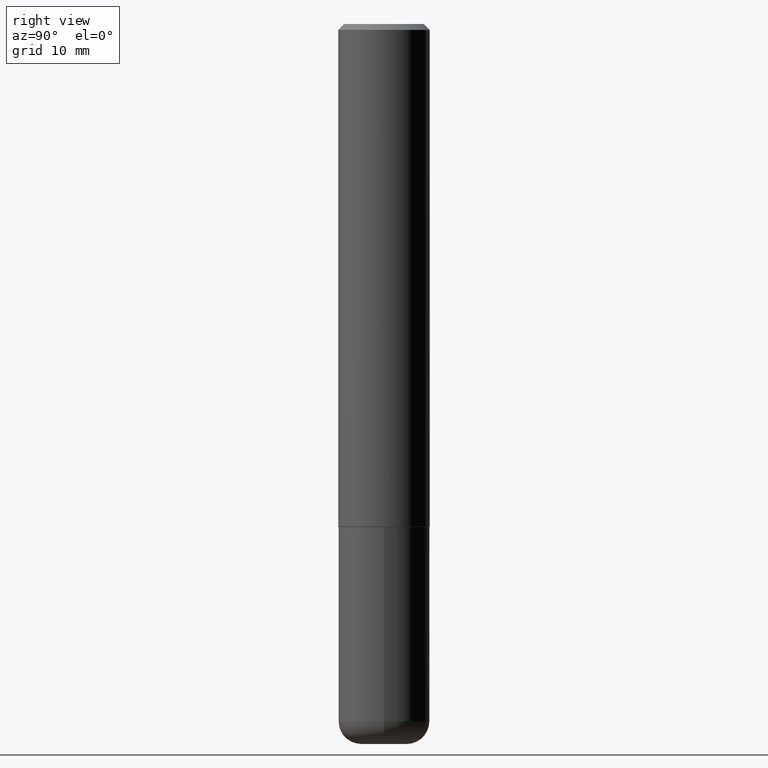
[diagram: clean part render]
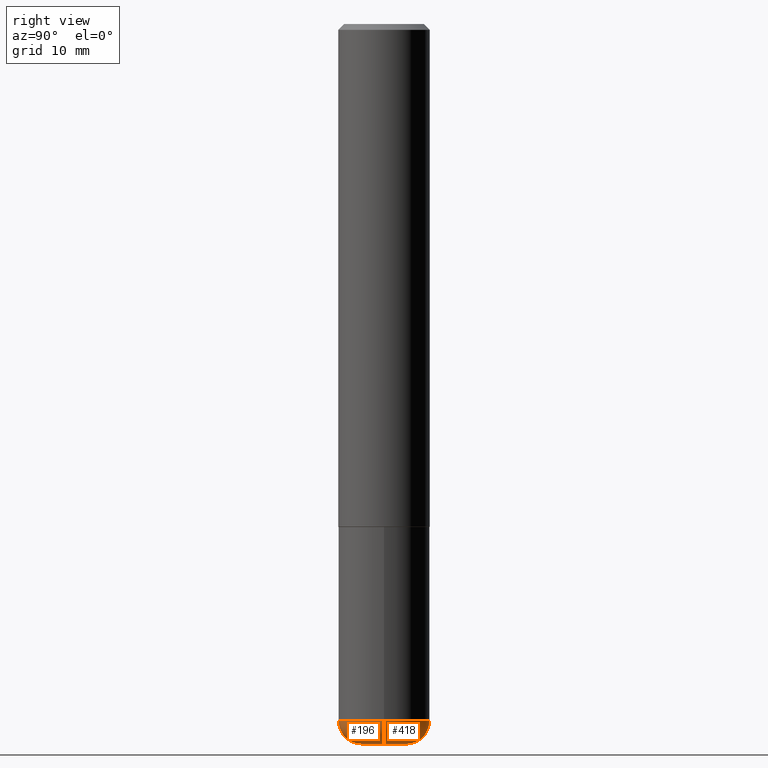
[diagram: same view with one multi-face feature highlighted, each face labeled with its STEP entity id]
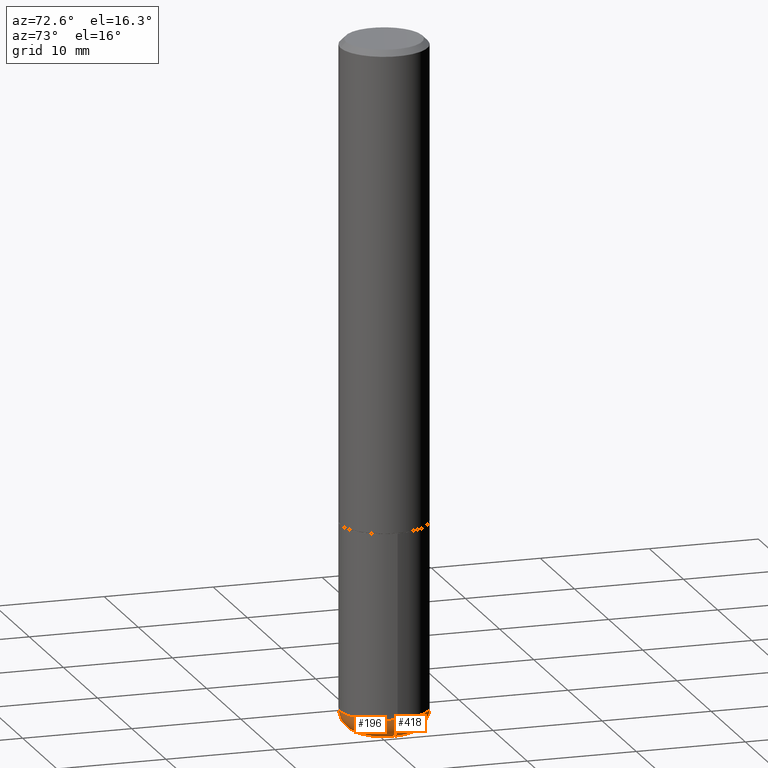
[diagram: same view with one multi-face feature highlighted, each face labeled with its STEP entity id]
A machine part, right view. The highlighted faces form ONE feature: a constant-radius fillet chain: 2 tangent blend faces with common blend radius 1.999 mm. The faces share edges in the B-rep.
A second angle (auxiliary view) of the same feature is appended — it is thin or edge-on in the first view.
Their STEP definitions:
[1] entity #418 (Torus):
#4 = DIRECTION ( 'NONE',  ( 1.000000000000000000, -6.982962677686261977E-15, 0.000000000000000000 ) ) ;
#6 = EDGE_LOOP ( 'NONE', ( #38, #191, #130, #256 ) ) ;
#14 = DIRECTION ( 'NONE',  ( 1.000000000000000000, -6.982962677686263555E-15, 4.883557194083111780E-29 ) ) ;
#19 = CARTESIAN_POINT ( 'NONE',  ( -0.07879999999999999505, -7.825233907586740028E-15, -2.401600000000000623 ) ) ;
#30 = AXIS2_PLACEMENT_3D ( 'NONE', #399, #209, #14 ) ;
#38 = ORIENTED_EDGE ( 'NONE', *, *, #213, .T. ) ;
#49 = DIRECTION ( 'NONE',  ( 1.000000000000000000, -6.982962677686277755E-15, 0.000000000000000000 ) ) ;
#74 = EDGE_CURVE ( 'NONE', #317, #355, #304, .T. ) ;
#81 = DIRECTION ( 'NONE',  ( -2.445468806185136597E-29, 3.491481338843145583E-15, 1.000000000000000000 ) ) ;
#93 = DIRECTION ( 'NONE',  ( -1.000000000000000000, 7.105427357600995548E-15, 0.000000000000000000 ) ) ;
#102 = CARTESIAN_POINT ( 'NONE',  ( 0.1574999999999999456, -9.484958205101285532E-15, -2.401600000000000623 ) ) ;
#104 = AXIS2_PLACEMENT_3D ( 'NONE', #181, #81, #49 ) ;
#130 = ORIENTED_EDGE ( 'NONE', *, *, #346, .F. ) ;
#132 = AXIS2_PLACEMENT_3D ( 'NONE', #167, #384, #4 ) ;
#138 = AXIS2_PLACEMENT_3D ( 'NONE', #19, #145, #93 ) ;
#145 = DIRECTION ( 'NONE',  ( 7.105427357601001859E-15, 1.000000000000000000, -3.491481338843145583E-15 ) ) ;
#149 = EDGE_CURVE ( 'NONE', #228, #379, #314, .T. ) ;
#167 = CARTESIAN_POINT ( 'NONE',  ( 5.873037884934225470E-29, -8.385141583365698841E-15, -2.401600000000000623 ) ) ;
#168 = TOROIDAL_SURFACE ( 'NONE', #30, 0.07879999999999999505, 0.07869999999999995055 ) ;
#181 = CARTESIAN_POINT ( 'NONE',  ( 6.065496279980994755E-29, -8.659921164732655335E-15, -2.480300000000000171 ) ) ;
#185 = CARTESIAN_POINT ( 'NONE',  ( 0.07879999999999999505, -8.935399042367378854E-15, -2.401600000000000623 ) ) ;
#191 = ORIENTED_EDGE ( 'NONE', *, *, #149, .T. ) ;
#208 = CIRCLE ( 'NONE', #132, 0.1575000000000000011 ) ;
#209 = DIRECTION ( 'NONE',  ( -2.445468806185136597E-29, 3.491481338843145583E-15, 1.000000000000000000 ) ) ;
#213 = EDGE_CURVE ( 'NONE', #317, #228, #279, .T. ) ;
#228 = VERTEX_POINT ( 'NONE', #303 ) ;
#256 = ORIENTED_EDGE ( 'NONE', *, *, #74, .F. ) ;
#279 = CIRCLE ( 'NONE', #104, 0.07880000000000000893 ) ;
#303 = CARTESIAN_POINT ( 'NONE',  ( -0.07880000000000000893, -7.683025131748618880E-15, -2.480300000000000171 ) ) ;
#304 = CIRCLE ( 'NONE', #361, 0.07869999999999996443 ) ;
#306 = DIRECTION ( 'NONE',  ( 1.000000000000000000, -6.982962677686273021E-15, 0.000000000000000000 ) ) ;
#314 = CIRCLE ( 'NONE', #138, 0.07869999999999996443 ) ;
#315 = CARTESIAN_POINT ( 'NONE',  ( -0.1574999999999999456, -7.266036774543542815E-15, -2.401600000000000623 ) ) ;
#317 = VERTEX_POINT ( 'NONE', #377 ) ;
#346 = EDGE_CURVE ( 'NONE', #355, #379, #208, .T. ) ;
#355 = VERTEX_POINT ( 'NONE', #102 ) ;
#361 = AXIS2_PLACEMENT_3D ( 'NONE', #185, #408, #306 ) ;
#377 = CARTESIAN_POINT ( 'NONE',  ( 0.07880000000000000893, -9.210178623734333771E-15, -2.480300000000000171 ) ) ;
#379 = VERTEX_POINT ( 'NONE', #315 ) ;
#384 = DIRECTION ( 'NONE',  ( -2.445468806185136597E-29, 3.491481338843145583E-15, 1.000000000000000000 ) ) ;
#399 = CARTESIAN_POINT ( 'NONE',  ( 5.873037884934225470E-29, -8.385141583365698841E-15, -2.401600000000000623 ) ) ;
#403 = FACE_OUTER_BOUND ( 'NONE', #6, .T. ) ;
#408 = DIRECTION ( 'NONE',  ( -6.982962677686266711E-15, -1.000000000000000000, 3.491481338843145583E-15 ) ) ;
#418 = ADVANCED_FACE ( 'NONE', ( #403 ), #168, .T. ) ;
[2] entity #196 (Torus):
#19 = CARTESIAN_POINT ( 'NONE',  ( -0.07879999999999999505, -7.825233907586740028E-15, -2.401600000000000623 ) ) ;
#20 = CIRCLE ( 'NONE', #194, 0.1575000000000000011 ) ;
#45 = AXIS2_PLACEMENT_3D ( 'NONE', #242, #232, #333 ) ;
#51 = DIRECTION ( 'NONE',  ( 1.000000000000000000, -6.982962677686261977E-15, 0.000000000000000000 ) ) ;
#65 = EDGE_CURVE ( 'NONE', #228, #317, #321, .T. ) ;
#74 = EDGE_CURVE ( 'NONE', #317, #355, #304, .T. ) ;
#75 = EDGE_LOOP ( 'NONE', ( #319, #220, #323, #414 ) ) ;
#93 = DIRECTION ( 'NONE',  ( -1.000000000000000000, 7.105427357600995548E-15, 0.000000000000000000 ) ) ;
#102 = CARTESIAN_POINT ( 'NONE',  ( 0.1574999999999999456, -9.484958205101285532E-15, -2.401600000000000623 ) ) ;
#118 = CARTESIAN_POINT ( 'NONE',  ( 5.873037884934225470E-29, -8.385141583365698841E-15, -2.401600000000000623 ) ) ;
#138 = AXIS2_PLACEMENT_3D ( 'NONE', #19, #145, #93 ) ;
#145 = DIRECTION ( 'NONE',  ( 7.105427357601001859E-15, 1.000000000000000000, -3.491481338843145583E-15 ) ) ;
#149 = EDGE_CURVE ( 'NONE', #228, #379, #314, .T. ) ;
#155 = DIRECTION ( 'NONE',  ( 1.000000000000000000, -6.982962677686277755E-15, 0.000000000000000000 ) ) ;
#185 = CARTESIAN_POINT ( 'NONE',  ( 0.07879999999999999505, -8.935399042367378854E-15, -2.401600000000000623 ) ) ;
#194 = AXIS2_PLACEMENT_3D ( 'NONE', #118, #417, #51 ) ;
#196 = ADVANCED_FACE ( 'NONE', ( #212 ), #352, .T. ) ;
#199 = AXIS2_PLACEMENT_3D ( 'NONE', #406, #211, #155 ) ;
#211 = DIRECTION ( 'NONE',  ( -2.445468806185136597E-29, 3.491481338843145583E-15, 1.000000000000000000 ) ) ;
#212 = FACE_OUTER_BOUND ( 'NONE', #75, .T. ) ;
#220 = ORIENTED_EDGE ( 'NONE', *, *, #65, .T. ) ;
#228 = VERTEX_POINT ( 'NONE', #303 ) ;
#232 = DIRECTION ( 'NONE',  ( -2.445468806185136597E-29, 3.491481338843145583E-15, 1.000000000000000000 ) ) ;
#242 = CARTESIAN_POINT ( 'NONE',  ( 5.873037884934225470E-29, -8.385141583365698841E-15, -2.401600000000000623 ) ) ;
#303 = CARTESIAN_POINT ( 'NONE',  ( -0.07880000000000000893, -7.683025131748618880E-15, -2.480300000000000171 ) ) ;
#304 = CIRCLE ( 'NONE', #361, 0.07869999999999996443 ) ;
#306 = DIRECTION ( 'NONE',  ( 1.000000000000000000, -6.982962677686273021E-15, 0.000000000000000000 ) ) ;
#314 = CIRCLE ( 'NONE', #138, 0.07869999999999996443 ) ;
#315 = CARTESIAN_POINT ( 'NONE',  ( -0.1574999999999999456, -7.266036774543542815E-15, -2.401600000000000623 ) ) ;
#317 = VERTEX_POINT ( 'NONE', #377 ) ;
#319 = ORIENTED_EDGE ( 'NONE', *, *, #149, .F. ) ;
#321 = CIRCLE ( 'NONE', #199, 0.07880000000000000893 ) ;
#323 = ORIENTED_EDGE ( 'NONE', *, *, #74, .T. ) ;
#330 = EDGE_CURVE ( 'NONE', #379, #355, #20, .T. ) ;
#333 = DIRECTION ( 'NONE',  ( 1.000000000000000000, -6.982962677686263555E-15, 4.883557194083111780E-29 ) ) ;
#352 = TOROIDAL_SURFACE ( 'NONE', #45, 0.07879999999999999505, 0.07869999999999995055 ) ;
#355 = VERTEX_POINT ( 'NONE', #102 ) ;
#361 = AXIS2_PLACEMENT_3D ( 'NONE', #185, #408, #306 ) ;
#377 = CARTESIAN_POINT ( 'NONE',  ( 0.07880000000000000893, -9.210178623734333771E-15, -2.480300000000000171 ) ) ;
#379 = VERTEX_POINT ( 'NONE', #315 ) ;
#406 = CARTESIAN_POINT ( 'NONE',  ( 6.065496279980994755E-29, -8.659921164732655335E-15, -2.480300000000000171 ) ) ;
#408 = DIRECTION ( 'NONE',  ( -6.982962677686266711E-15, -1.000000000000000000, 3.491481338843145583E-15 ) ) ;
#414 = ORIENTED_EDGE ( 'NONE', *, *, #330, .F. ) ;
#417 = DIRECTION ( 'NONE',  ( -2.445468806185136597E-29, 3.491481338843145583E-15, 1.000000000000000000 ) ) ;